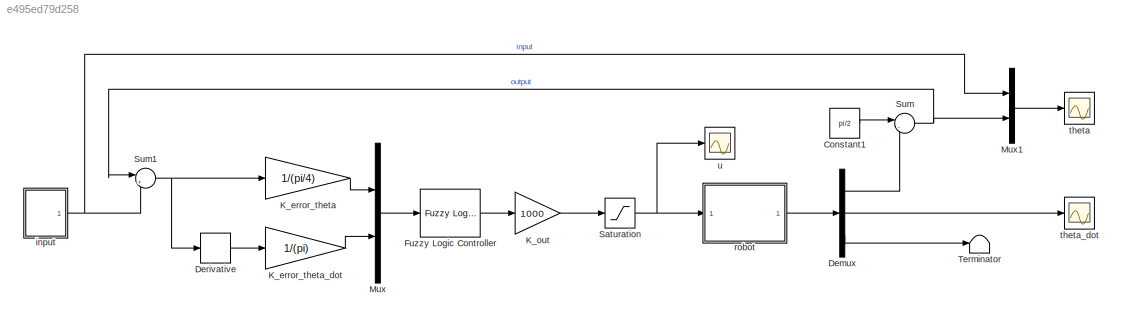
MODEL slx_e495ed79d258
KIND model
CONFIG AbsTol = auto
CONFIG EnableMultiTasking = off
CONFIG FixedStep = 0.001
CONFIG MaxStep = auto
CONFIG MinStep = auto
CONFIG RelTol = 1e-3
CONFIG SampleTimeConstraint = Unconstrained
CONFIG Solver = FixedStepAuto
CONFIG SolverName = FixedStepAuto
CONFIG StartTime = 0.0
CONFIG StopTime = 60
BLOCK [Constant] Constant1
  Value = pi/2
BLOCK [Demux] Demux
  DisplayOption = bar
  Outputs = 3
  Ports = [1, 3]
BLOCK [Derivative] Derivative
BLOCK [Reference] Fuzzy Logic Controller  REF=fuzblock/Fuzzy Logic   (lib defined in mdl_858b3b3e7478)
Controller
  Ports = [1, 1]
  SourceBlock = fuzblock/Fuzzy Logic \nController
  SourceType = FIS
BLOCK [Gain] K_error_theta
  Gain = 1/(pi/4)
  OutDataTypeStr = Inherit: Inherit via internal rule
  ParamDataTypeStr = Inherit: Inherit via internal rule
  SaturateOnIntegerOverflow = off
BLOCK [Gain] K_error_theta_dot
  Gain = 1/(pi)
  OutDataTypeStr = Inherit: Inherit via internal rule
  ParamDataTypeStr = Inherit: Inherit via internal rule
  SaturateOnIntegerOverflow = off
BLOCK [Gain] K_out
  Gain = 1000
  OutDataTypeStr = Inherit: Inherit via internal rule
  ParamDataTypeStr = Inherit: Inherit via internal rule
  SaturateOnIntegerOverflow = off
BLOCK [Mux] Mux
  DisplayOption = bar
  Inputs = 2
  Ports = [2, 1]
BLOCK [Mux] Mux1
  DisplayOption = bar
  Inputs = 2
  Ports = [2, 1]
BLOCK [Saturate] Saturation
  InputPortMap = u0
  LowerLimit = -50
  Ports = [1, 1]
  UpperLimit = 50
BLOCK [Sum] Sum
  IconShape = round
  InputSameDT = off
  Inputs = |-+
  OutDataTypeStr = Inherit: Inherit via internal rule
  Ports = [2, 1]
  SaturateOnIntegerOverflow = off
BLOCK [Sum] Sum1
  IconShape = round
  InputSameDT = off
  Inputs = |+-
  OutDataTypeStr = Inherit: Inherit via internal rule
  Ports = [2, 1]
  SaturateOnIntegerOverflow = off
BLOCK [Terminator] Terminator
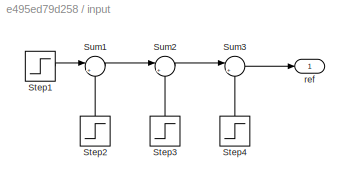
BLOCK [SubSystem] input
  Ports = [0, 1]
  RequestExecContextInheritance = off
  Variant = off
BLOCK [Step] input/Step1
  After = 0
  SampleTime = 0
  Time = 0
BLOCK [Step] input/Step2
  After = -pi/4
  SampleTime = 0
  Time = 15
BLOCK [Step] input/Step3
  After = pi/2
  SampleTime = 0
  Time = 30
BLOCK [Step] input/Step4
  After = -pi/4 - pi/6
  SampleTime = 0
  Time = 45
BLOCK [Sum] input/Sum1
  IconShape = round
  InputSameDT = off
  Inputs = |++
  OutDataTypeStr = Inherit: Inherit via internal rule
  Ports = [2, 1]
BLOCK [Sum] input/Sum2
  IconShape = round
  InputSameDT = off
  Inputs = |++
  OutDataTypeStr = Inherit: Inherit via internal rule
  Ports = [2, 1]
BLOCK [Sum] input/Sum3
  IconShape = round
  InputSameDT = off
  Inputs = |++
  OutDataTypeStr = Inherit: Inherit via internal rule
  Ports = [2, 1]
BLOCK [Outport] input/ref
  IconDisplay = Port number
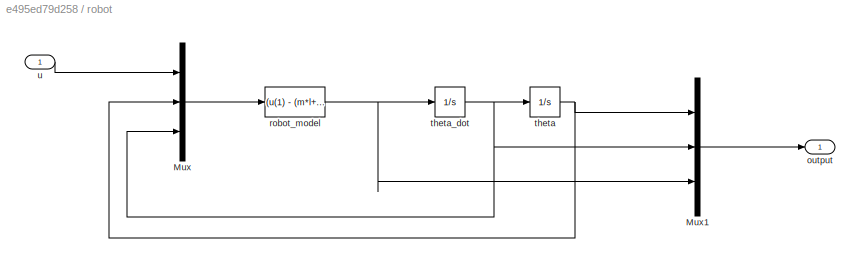
BLOCK [SubSystem] robot
  Ports = [1, 1]
  RequestExecContextInheritance = off
  Variant = off
BLOCK [Mux] robot/Mux
  DisplayOption = bar
  Inputs = 3
  Ports = [3, 1]
BLOCK [Mux] robot/Mux1
  DisplayOption = bar
  Inputs = 3
  Ports = [3, 1]
BLOCK [Outport] robot/output
  IconDisplay = Port number
BLOCK [Fcn] robot/robot_model
  Expr = (u(1) - (m*l+M_*lc)*g*cos(u(2)) - B*u(3)) / (J+m*l^2)
BLOCK [Integrator] robot/theta
  InitialCondition = init_theta
  Ports = [1, 1]
BLOCK [Integrator] robot/theta_dot
  InitialCondition = init_theta_dot
  Ports = [1, 1]
BLOCK [Inport] robot/u
  IconDisplay = Port number
BLOCK [Scope] theta
  NumInputPorts = 1
  Ports = [1]
  ScopeSpecificationString = Simulink.scopes.TimeScopeBlockCfg('CurrentConfiguration', extmgr.ConfigurationSet(extmgr.Configuration('Core','General UI',true),extmgr.Configuration('Core','Source UI',true),extmgr.Configuration('Sources','WiredSimulink',true),extmgr.Configuration('Visuals','Time Domain',true,'SerializedDisplays',{struct('MinYLimReal','-1.86562','MaxYLimReal','1.08266','YLabelReal','','MinYLimMag','0.00000','MaxY...<+1431ch>
BLOCK [Scope] theta_dot
  NumInputPorts = 1
  Ports = [1]
  ScopeSpecificationString = Simulink.scopes.TimeScopeBlockCfg('CurrentConfiguration', extmgr.ConfigurationSet(extmgr.Configuration('Core','General UI',true),extmgr.Configuration('Core','Source UI',true),extmgr.Configuration('Sources','WiredSimulink',true,'DataLoggingVariableName','ScopeData1'),extmgr.Configuration('Visuals','Time Domain',true,'SerializedDisplays',{struct('MinYLimReal','-3.27562','MaxYLimReal','3.08287','YLab...<+1439ch>
BLOCK [Scope] u
  NumInputPorts = 1
  Ports = [1]
  ScopeSpecificationString = Simulink.scopes.TimeScopeBlockCfg('CurrentConfiguration', extmgr.ConfigurationSet(extmgr.Configuration('Core','General UI',true),extmgr.Configuration('Core','Source UI',true),extmgr.Configuration('Sources','WiredSimulink',true,'DataLoggingVariableName','ScopeData1'),extmgr.Configuration('Visuals','Time Domain',true,'SerializedDisplays',{struct('MinYLimReal','-26.44792','MaxYLimReal','32.59483','YL...<+1449ch>
LINE Constant1:1 -> Sum:1
LINE Demux:1 -> Sum:2
LINE Demux:2 -> theta_dot:1
LINE Demux:3 -> Terminator:1
LINE Derivative:1 -> K_error_theta_dot:1
LINE Fuzzy Logic Controller:1 -> K_out:1
LINE K_error_theta:1 -> Mux:1
LINE K_error_theta_dot:1 -> Mux:2
LINE K_out:1 -> Saturation:1
LINE Mux1:1 -> theta:1
LINE Mux:1 -> Fuzzy Logic Controller:1
NET Saturation:1 -> robot:1, u:1
NET Sum1:1 -> Derivative:1, K_error_theta:1
NET Sum:1 -> Mux1:2, Sum1:1
LINE input/Step1:1 -> input/Sum1:1
LINE input/Step2:1 -> input/Sum1:2
LINE input/Step3:1 -> input/Sum2:2
LINE input/Step4:1 -> input/Sum3:2
LINE input/Sum1:1 -> input/Sum2:1
LINE input/Sum2:1 -> input/Sum3:1
LINE input/Sum3:1 -> input/ref:1
NET input:1 -> Mux1:1, Sum1:2
LINE robot/Mux1:1 -> robot/output:1
LINE robot/Mux:1 -> robot/robot_model:1
NET robot/robot_model:1 -> robot/Mux1:3, robot/theta_dot:1
NET robot/theta:1 -> robot/Mux1:1, robot/Mux:2
NET robot/theta_dot:1 -> robot/Mux1:2, robot/Mux:3, robot/theta:1
LINE robot/u:1 -> robot/Mux:1
LINE robot:1 -> Demux:1
note: NET lines group one-source signal fan-out (src -> all destinations, sorted); 1:1 wires keep LINE
